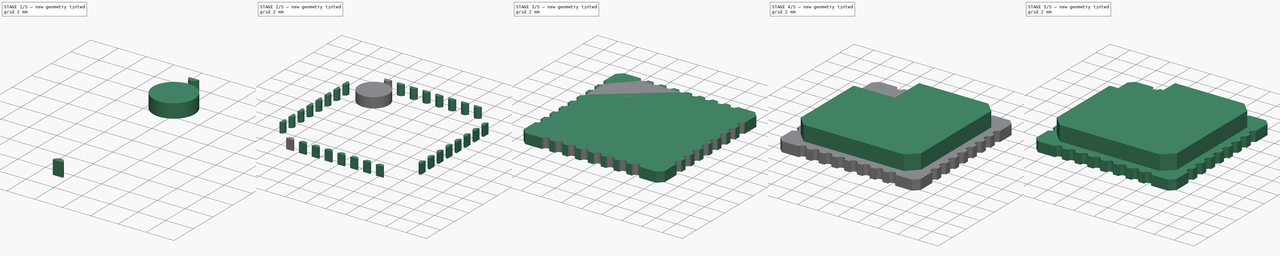
[diagram: build sequence overview — one tinted view per stage of 5, left to right]
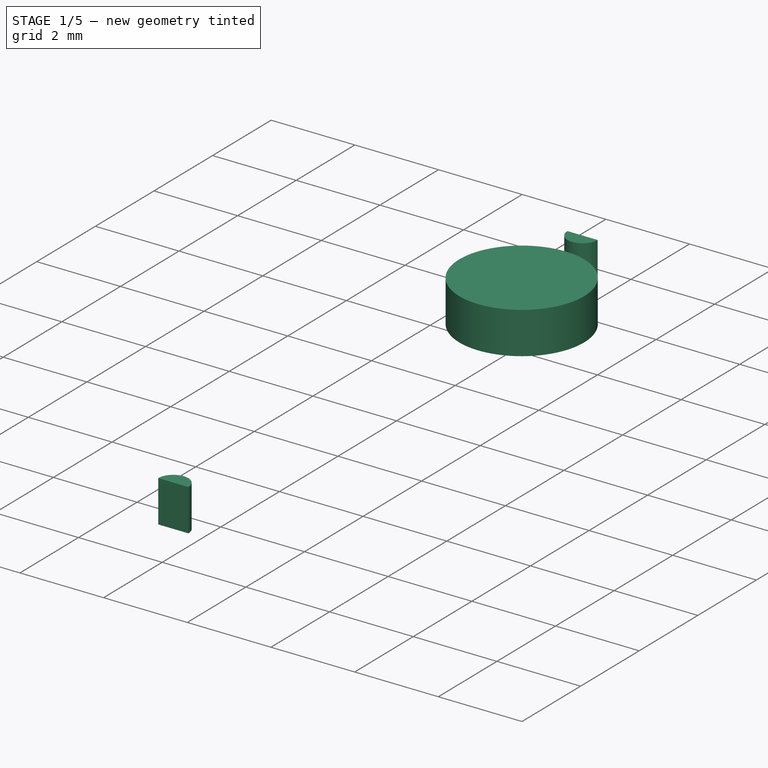
[diagram: stage 1 of 5 — iso view after this stage's code; geometry added in this stage tinted green]
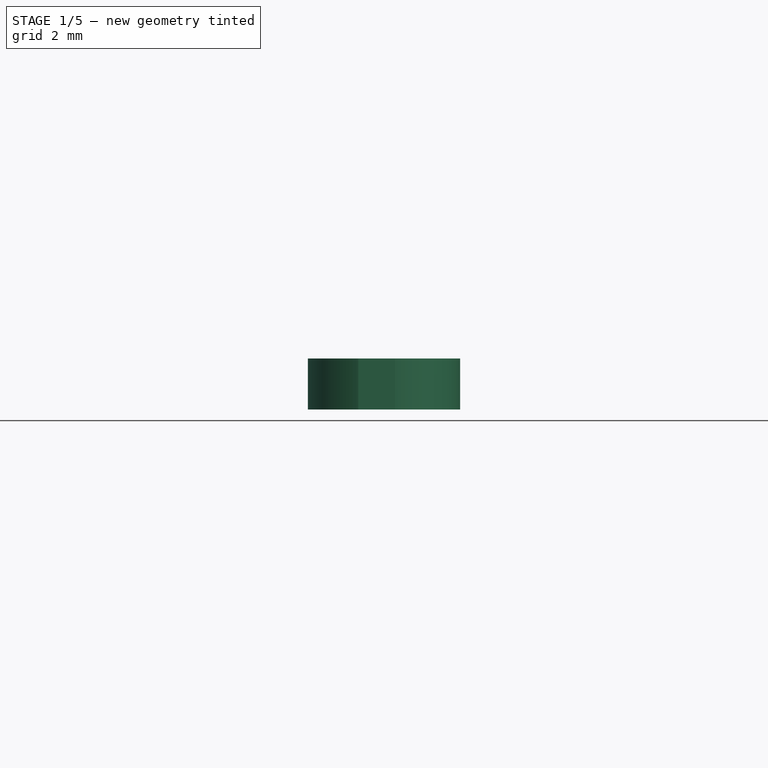
[diagram: stage 1 of 5 — front view after this stage's code; geometry added in this stage tinted green]
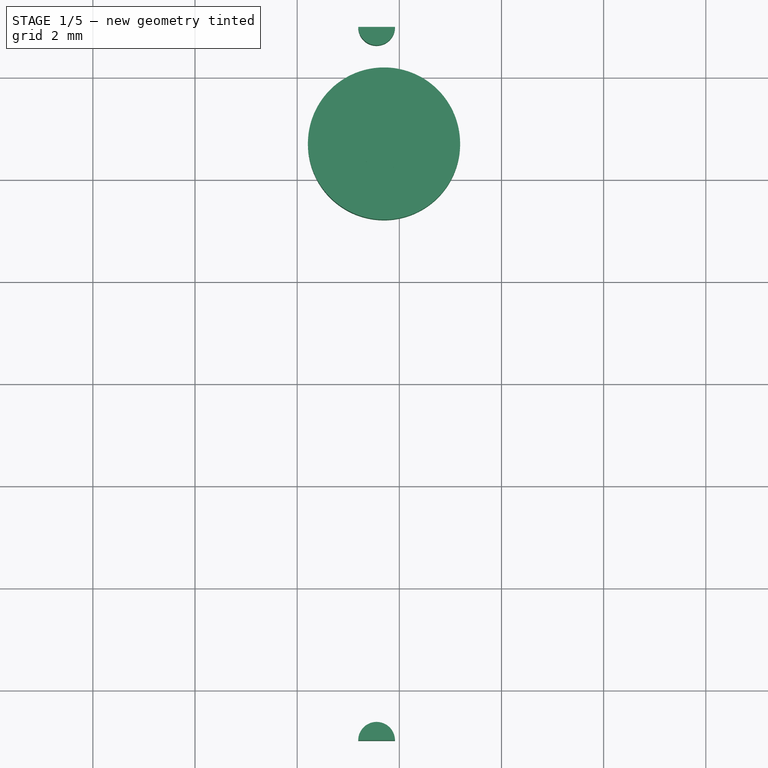
[diagram: stage 1 of 5 — top view after this stage's code; geometry added in this stage tinted green]
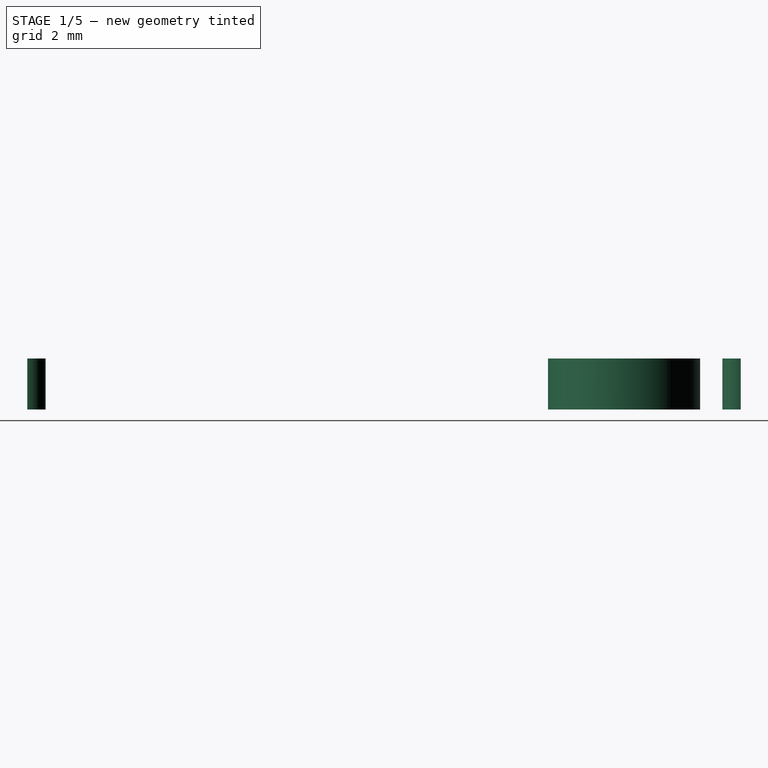
[diagram: stage 1 of 5 — right view after this stage's code; geometry added in this stage tinted green]
FCSTD DOCUMENT  (FreeCAD 0.17R13522 (Git))
Label: MonoWireless_TWE-L-WX
License: CC-BY 3.0
LicenseURL: http://creativecommons.org/licenses/by/3.0/
objects: Sketcher::SketchObject×5, PartDesign::Pad×5, Part::FeaturePython×4, Part::MultiFuse×2, Part::Cut×2, Part::Part2DObjectPython×2, PartDesign::Chamfer×1, PartDesign::Fillet×1, Part::Cylinder×1, Part::Sweep×1, Part::Thickness×1, Part::Feature×1
note: 31 computed .brp shape members not serialized (recipe doc carries the construction recipe); baked Part::Feature solids carry a one-line shape summary decoded from their .brp

FEATURE [Sketcher::SketchObject] Sketch012  label="ContactHoleCS2"
  MapMode = 5
  sketch-geometry (4):
    g0: ArcOfCircle CenterX=-4.445 CenterY=-6.985 CenterZ=0 NormalX=0 NormalY=0 NormalZ=1 AngleXU=0 Radius=0.36 StartAngle=0 EndAngle=3.14159
    g1: LineSegment StartX=-4.805 StartY=-6.985 StartZ=0 EndX=-4.085 EndY=-6.985 EndZ=0
    g2: ArcOfCircle CenterX=-4.445 CenterY=6.985 CenterZ=0 NormalX=0 NormalY=0 NormalZ=1 AngleXU=0 Radius=0.36 StartAngle=3.14159 EndAngle=6.28319
    g3: LineSegment StartX=-4.805 StartY=6.985 StartZ=0 EndX=-4.085 EndY=6.985 EndZ=0
  constraints (14):
    c: DistanceX(g-2,g0) = -4.445
    c: DistanceY(g-1,g0) = -6.985
    c: DistanceY(g0,g0) = 0
    c: DistanceY(g0,g0) = 0
    c: Radius(g0) = 0.36
    c: Coincident(g1,g0)
    c: Coincident(g1,g0)
    c: DistanceX(g-2,g2) = -4.445
    c: DistanceY(g-1,g2) = 6.985
    c: Radius(g2) = 0.36
    c: DistanceY(g2,g2) = 0
    c: DistanceY(g2,g2) = 0
    c: Coincident(g3,g2)
    c: Coincident(g3,g2)
FEATURE [PartDesign::Pad] Pad010  label="SingleContactHole2"
  Length = 1
  Length2 = 100
  Type = 0
FEATURE [Part::Part2DObjectPython] Circle  label="CircleAntennaContact"  # Draft 2D object (typed FeaturePython)
  FirstAngle = 0
  LastAngle = 0
  MakeFace = false
  MapMode = 5
  Placement = pos=(-4.3,4.7,0) rot=(0,0,1;0rad)
  Radius = 0.49
FEATURE [Part::Cylinder] Cylinder  label="AntennaHole"
  Angle = 360
  AttacherType = Attacher::AttachEngine3D
  Height = 1.0002
  Placement = pos=(-4.3,4.7,-0.0001) rot=(0,0,1;0rad)
  Radius = 0.5
FEATURE [Part::Part2DObjectPython] Line  # Draft 2D object (typed FeaturePython)
  ChamferSize = 0
  Closed = false
  End = (-4.335,4.715,1)
  FilletRadius = 0
  Length = 1
  MakeFace = true
  MapMode = 5
  Points = (2) [(-4.335,4.715,0),(-4.335,4.715,1)]
  Start = (-4.335,4.715,0)
  Subdivisions = 0
FEATURE [Part::Sweep] Sweep
  Frenet = false
  Sections = -> [Circle]
  Solid = true
  Spine = -> Line [Edge1]
  Transition = 1
FEATURE [Part::Thickness] Thickness  label="AntennaContact"
  Faces = -> Sweep [Face2,Face3]
  Intersection = false
  Join = 0
  Mode = 0
  SelfIntersection = false
  Value = 1
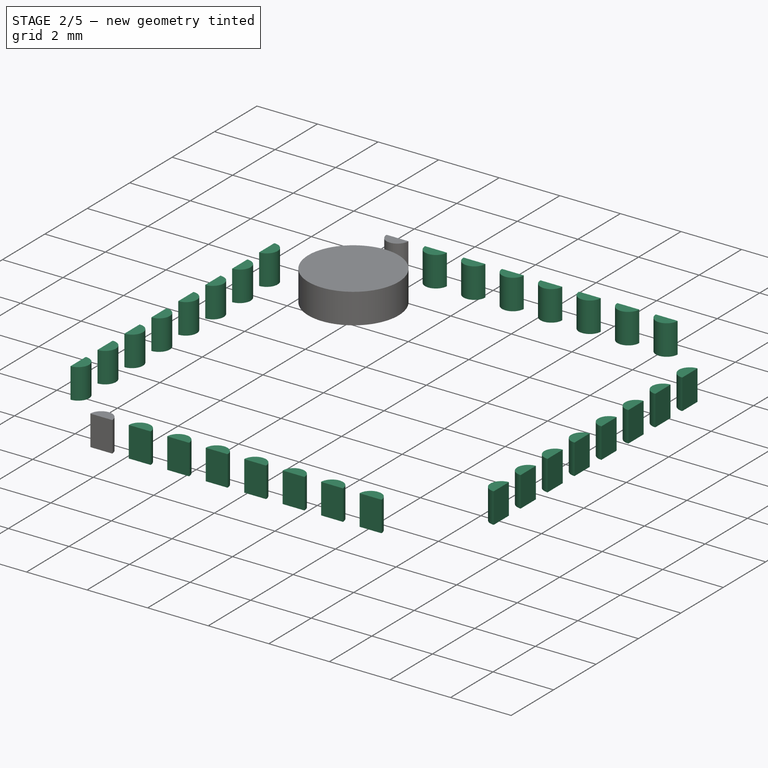
[diagram: stage 2 of 5 — iso view after this stage's code; geometry added in this stage tinted green]
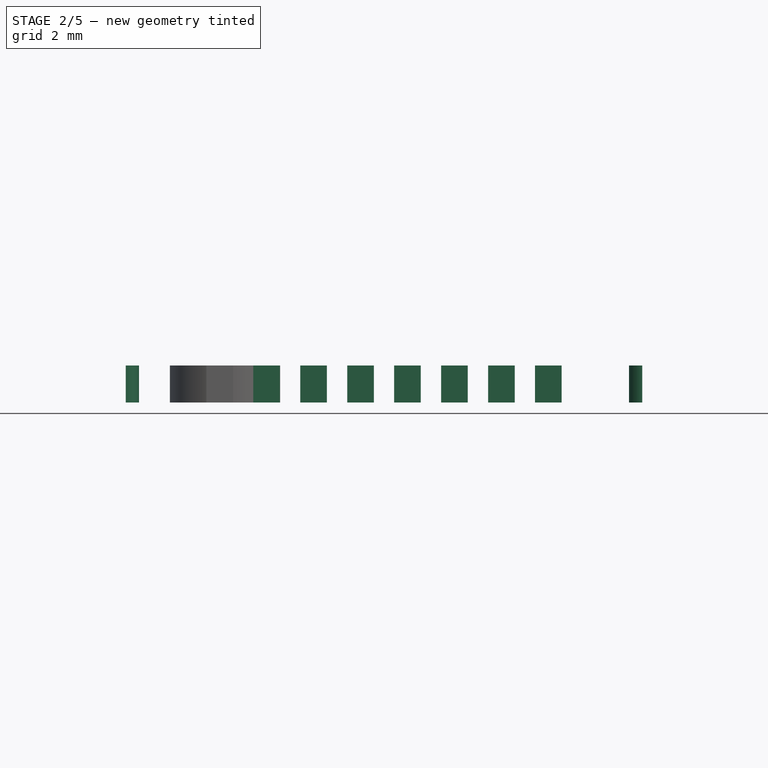
[diagram: stage 2 of 5 — front view after this stage's code; geometry added in this stage tinted green]
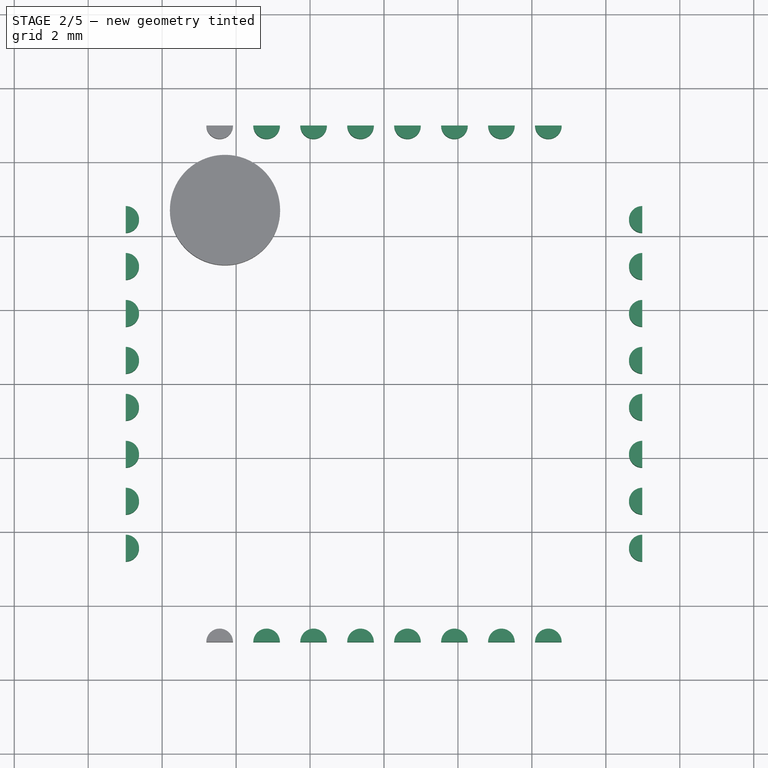
[diagram: stage 2 of 5 — top view after this stage's code; geometry added in this stage tinted green]
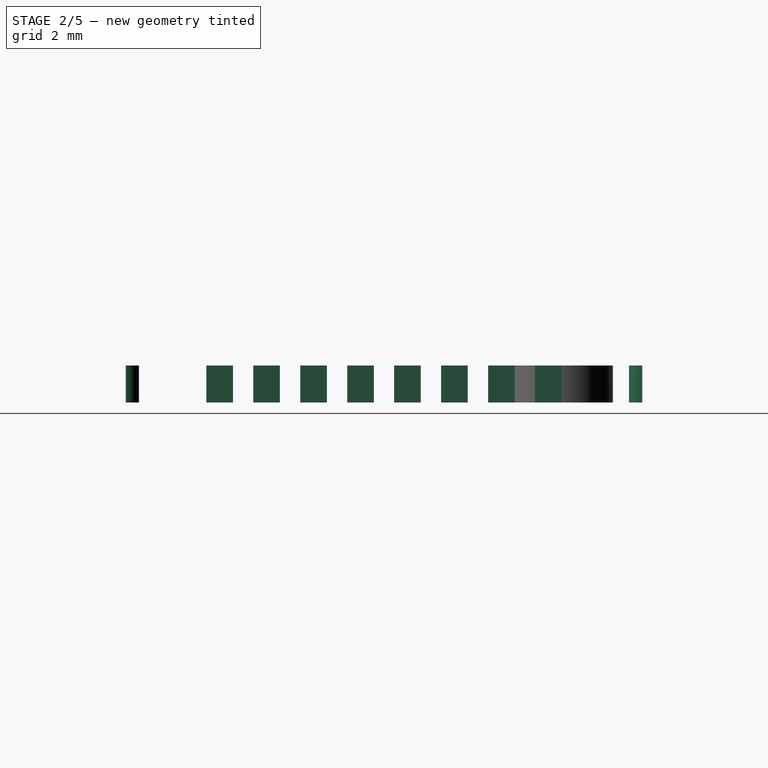
[diagram: stage 2 of 5 — right view after this stage's code; geometry added in this stage tinted green]
FEATURE [Sketcher::SketchObject] Sketch010  label="ContactHoleCS1"
  MapMode = 5
  sketch-geometry (4):
    g0: ArcOfCircle CenterX=-6.985 CenterY=-4.445 CenterZ=0 NormalX=0 NormalY=0 NormalZ=1 AngleXU=0 Radius=0.36 StartAngle=4.71239 EndAngle=7.85398
    g1: LineSegment StartX=-6.985 StartY=-4.085 StartZ=0 EndX=-6.985 EndY=-4.805 EndZ=0
    g2: ArcOfCircle CenterX=6.985 CenterY=-4.445 CenterZ=0 NormalX=0 NormalY=0 NormalZ=1 AngleXU=0 Radius=0.36 StartAngle=1.5708 EndAngle=4.71239
    g3: LineSegment StartX=6.985 StartY=-4.085 StartZ=0 EndX=6.985 EndY=-4.805 EndZ=0
  constraints (14):
    c: DistanceX(g-2,g0) = -6.985
    c: DistanceY(g-1,g0) = -4.445
    c: Radius(g0) = 0.36
    c: DistanceX(g-2,g0) = -6.985
    c: DistanceX(g-2,g0) = -6.985
    c: Coincident(g0,g1)
    c: Coincident(g1,g0)
    c: DistanceX(g-2,g2) = 6.985
    c: DistanceY(g-1,g2) = -4.445
    c: DistanceX(g-2,g2) = 6.985
    c: DistanceX(g-2,g2) = 6.985
    c: Coincident(g3,g2)
    c: Coincident(g3,g2)
    c: Radius(g2) = 0.36
FEATURE [PartDesign::Pad] Pad008  label="SingleContactHole1"
  Length = 1
  Length2 = 100
  Type = 0
FEATURE [Part::FeaturePython] Array  label="ArrayContactHoleSIL1"  # Draft array (typed FeaturePython)
  Angle = 360
  ArrayType = 0
  Axis = (0,0,1)
  Base = -> Pad008
  Center = (0,0,0)
  Fuse = false
  IntervalAxis = (0,0,0)
  IntervalX = (1,0,0)
  IntervalY = (0,1.27,0)
  IntervalZ = (0,0,0)
  NumberPolar = 1
  NumberX = 1
  NumberY = 8
  NumberZ = 1
FEATURE [Part::FeaturePython] Array008  label="ArrayContactHoleSIL2"  # Draft array (typed FeaturePython)
  Angle = 360
  ArrayType = 0
  Axis = (0,0,1)
  Base = -> Pad010
  Center = (0,0,0)
  Fuse = false
  IntervalAxis = (0,0,0)
  IntervalX = (1.27,0,0)
  IntervalY = (0,1,0)
  IntervalZ = (0,0,0)
  NumberPolar = 1
  NumberX = 8
  NumberY = 1
  NumberZ = 1
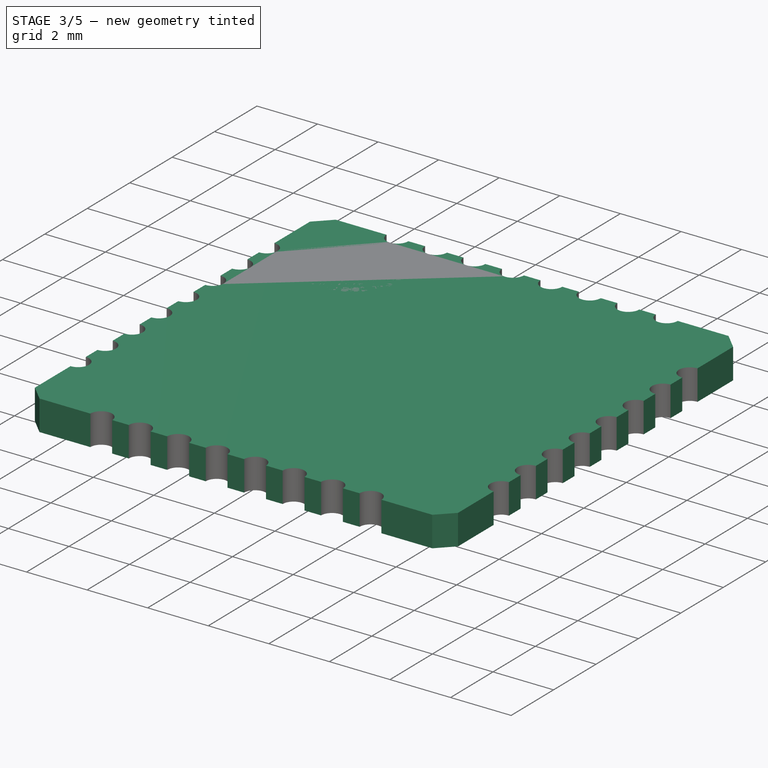
[diagram: stage 3 of 5 — iso view after this stage's code; geometry added in this stage tinted green]
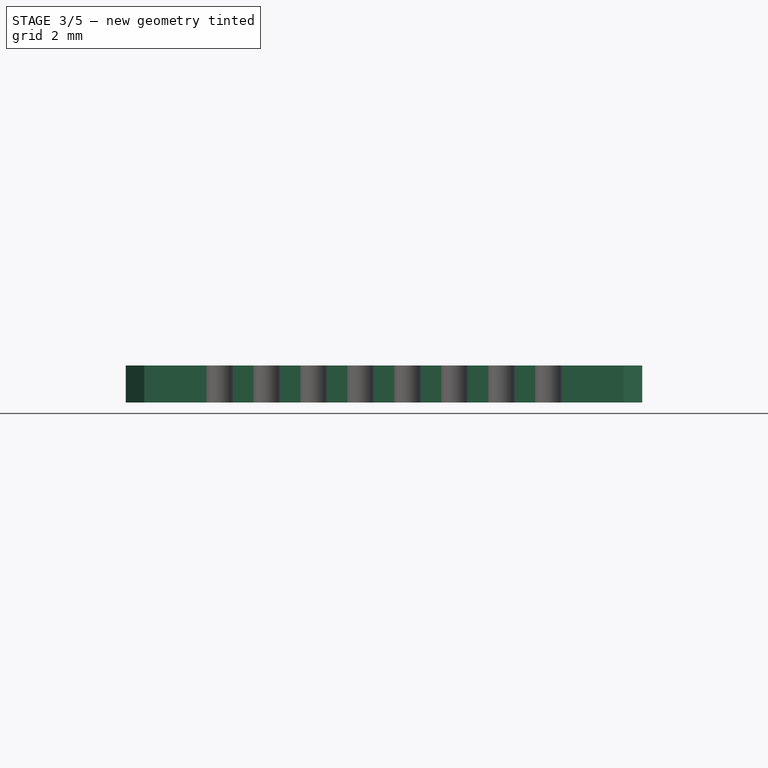
[diagram: stage 3 of 5 — front view after this stage's code; geometry added in this stage tinted green]
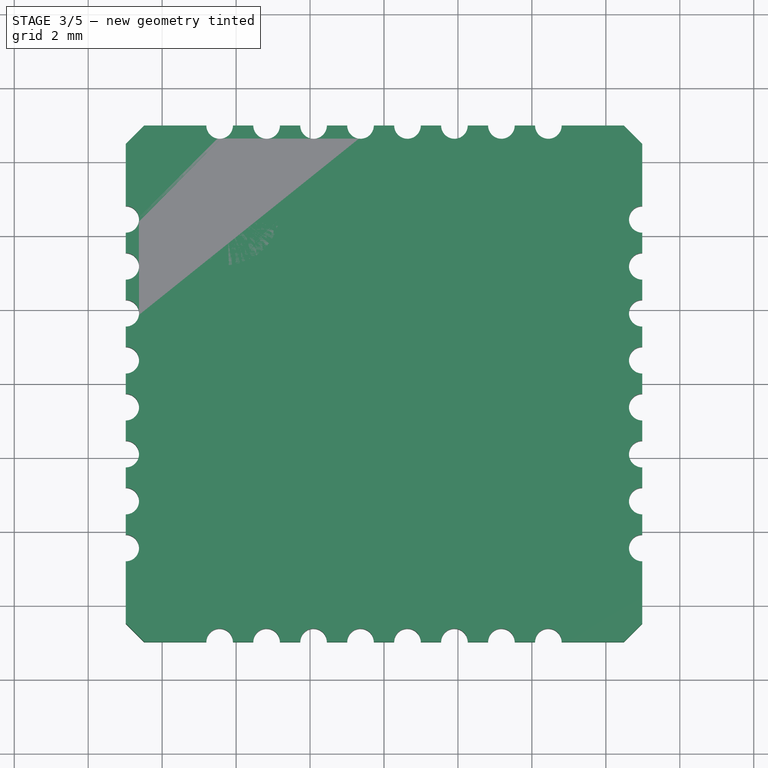
[diagram: stage 3 of 5 — top view after this stage's code; geometry added in this stage tinted green]
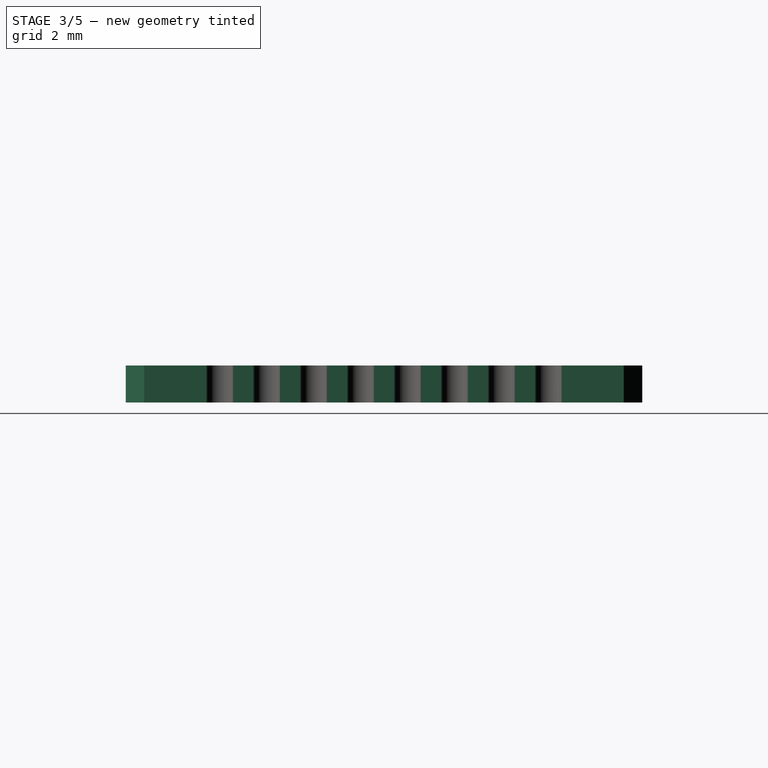
[diagram: stage 3 of 5 — right view after this stage's code; geometry added in this stage tinted green]
FEATURE [Sketcher::SketchObject] Sketch  label="BaseCS"
  MapMode = 5
  Placement = pos=(0,0,0) rot=(0,0,-1;1.5708rad)
  sketch-geometry (4):
    g0: LineSegment StartX=-6.985 StartY=6.985 StartZ=0 EndX=6.985 EndY=6.985 EndZ=0
    g1: LineSegment StartX=6.985 StartY=6.985 StartZ=0 EndX=6.985 EndY=-6.985 EndZ=0
    g2: LineSegment StartX=6.985 StartY=-6.985 StartZ=0 EndX=-6.985 EndY=-6.985 EndZ=0
    g3: LineSegment StartX=-6.985 StartY=-6.985 StartZ=0 EndX=-6.985 EndY=6.985 EndZ=0
  constraints (12):
    c: Coincident(g0,g1)
    c: Coincident(g1,g2)
    c: Coincident(g2,g3)
    c: Coincident(g3,g0)
    c: Horizontal(g0)
    c: Horizontal(g2)
    c: Vertical(g1)
    c: Vertical(g3)
    c: DistanceX(g0,g0) = 13.97
    c: DistanceY(g0,g1) = -13.97
    c: Symmetric(g0,g1,g-1)
    c: Symmetric(g0,g0,g-2)
FEATURE [PartDesign::Pad] Pad  label="BaseSquare"
  Length = 1
  Length2 = 100
  Placement = pos=(0,0,0) rot=(0,0,-1;1.5708rad)
  Type = 0
FEATURE [PartDesign::Chamfer] Chamfer  label="ChamferBase"
  Base = -> Pad [Edge2,Edge1,Edge5,Edge8]
  Placement = pos=(0,0,0) rot=(0,0,-1;1.5708rad)
  Size = 0.5
FEATURE [Part::MultiFuse] Fusion001  label="FusionContactHole"
  Shapes = -> [Array008,Array]
FEATURE [Part::Cut] Cut  label="CutContactHole"
  Base = -> Chamfer
  Tool = -> Fusion001
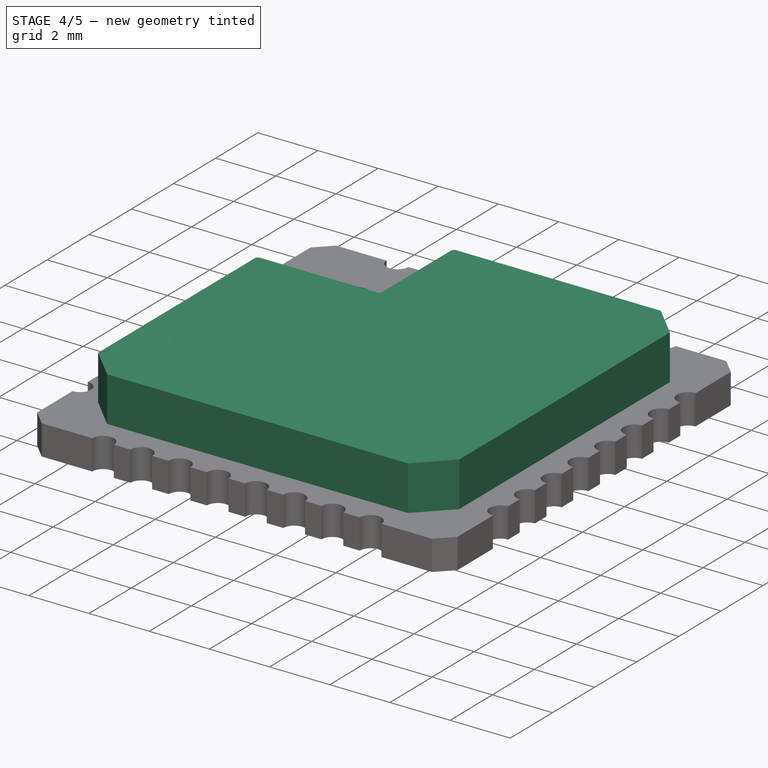
[diagram: stage 4 of 5 — iso view after this stage's code; geometry added in this stage tinted green]
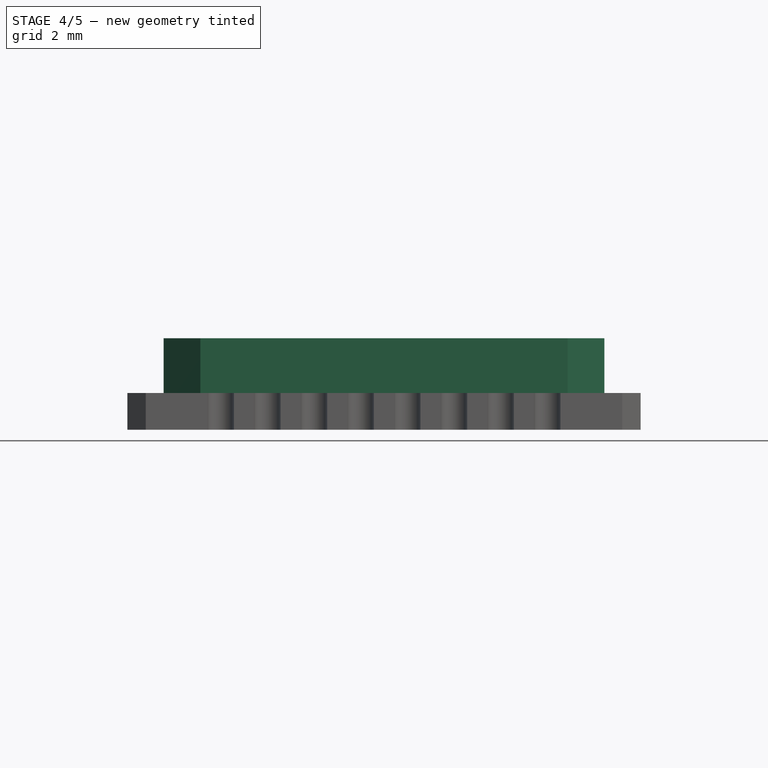
[diagram: stage 4 of 5 — front view after this stage's code; geometry added in this stage tinted green]
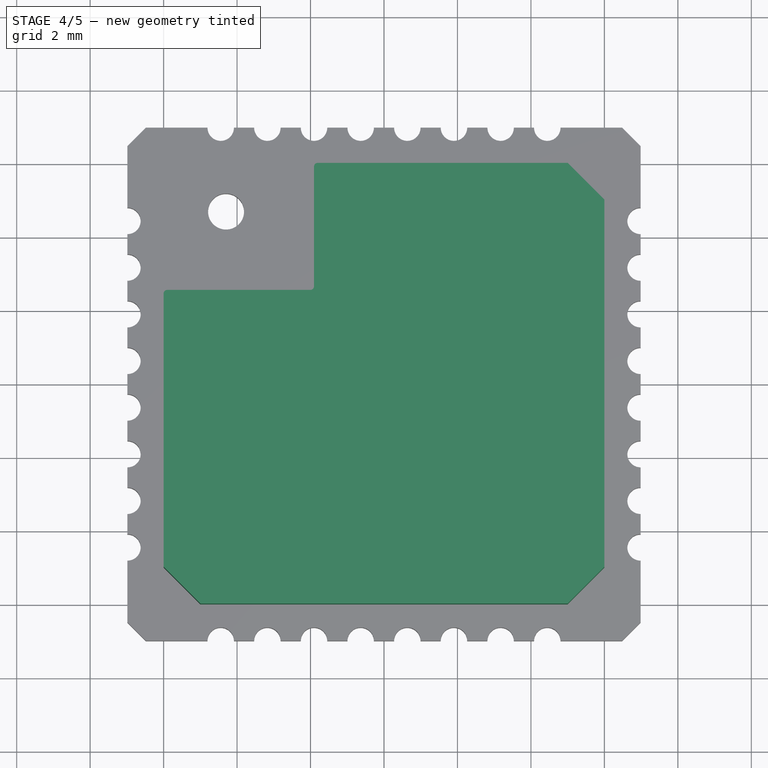
[diagram: stage 4 of 5 — top view after this stage's code; geometry added in this stage tinted green]
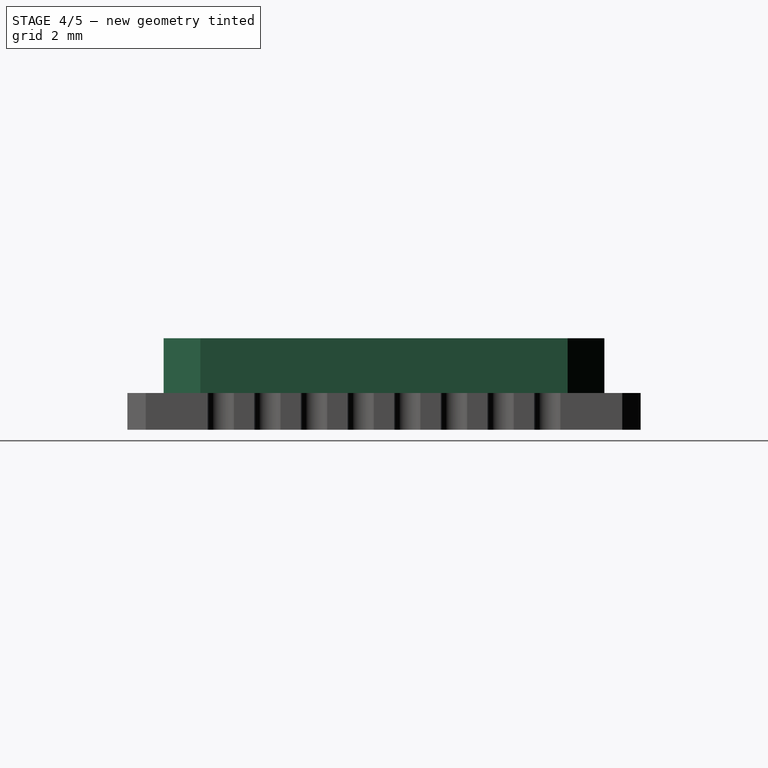
[diagram: stage 4 of 5 — right view after this stage's code; geometry added in this stage tinted green]
FEATURE [Sketcher::SketchObject] Sketch004  label="ShieldCS"
  MapMode = 5
  Placement = pos=(0,0,0.99) rot=(0,0,-1;1.5708rad)
  sketch-geometry (9):
    g0: LineSegment StartX=-6 StartY=-1.905 StartZ=0 EndX=-2.54 EndY=-1.905 EndZ=0
    g1: LineSegment StartX=-2.54 StartY=-1.905 StartZ=0 EndX=-2.54 EndY=-6 EndZ=0
    g2: LineSegment StartX=-2.54 StartY=-6 StartZ=0 EndX=5 EndY=-6 EndZ=0
    g3: LineSegment StartX=5 StartY=6 StartZ=0 EndX=-5 EndY=6 EndZ=0
    g4: LineSegment StartX=-6 StartY=5 StartZ=0 EndX=-5 EndY=6 EndZ=0
    g5: LineSegment StartX=-6 StartY=-1.905 StartZ=0 EndX=-6 EndY=5 EndZ=0
    g6: LineSegment StartX=5 StartY=6 StartZ=0 EndX=6 EndY=5 EndZ=0
    g7: LineSegment StartX=6 StartY=5 StartZ=0 EndX=6 EndY=-5 EndZ=0
    g8: LineSegment StartX=6 StartY=-5 StartZ=0 EndX=5 EndY=-6 EndZ=0
  constraints (29):
    c: Horizontal(g0)
    c: Coincident(g0,g1)
    c: Vertical(g1)
    c: Coincident(g1,g2)
    c: Horizontal(g2)
    c: Horizontal(g3)
    c: Symmetric(g3,g3,g-2)
    c: Symmetric(g2,g3,g-1)
    c: DistanceX(g-2,g1) = -2.54
    c: DistanceY(g-1,g0) = -1.905
    c: DistanceY(g3,g2) = -12
    c: DistanceX(g-2,g0) = -6
    c: Vertical(g5)
    c: DistanceY(g-1,g4) = 5
    c: DistanceX(g-2,g4) = -5
    c: Coincident(g3,g4)
    c: DistanceX(g-2,g6) = 5
    c: Coincident(g6,g3)
    c: DistanceX(g-2,g6) = 6
    c: DistanceY(g-1,g6) = 5
    c: DistanceY(g-1,g7) = -5
    c: DistanceX(g-2,g2) = 5
    c: Coincident(g7,g8)
    c: DistanceX(g-2,g7) = 6
    c: Vertical(g7)
    c: Coincident(g7,g6)
    c: Coincident(g8,g2)
    c: Coincident(g5,g0)
    c: Coincident(g5,g4)
FEATURE [PartDesign::Pad] Pad002  label="TopSheld"
  Length = 1.5
  Length2 = 100
  Placement = pos=(0,0,0.99) rot=(0,0,-1;1.5708rad)
  Type = 0
FEATURE [PartDesign::Fillet] Fillet005  label="FilletShield"
  Base = -> Pad002 [Edge1,Edge5,Edge8]
  Placement = pos=(0,0,0.99) rot=(0,0,-1;1.5708rad)
  Radius = 0.1
FEATURE [Part::Cut] Cut001  label="CutAntennaHole"
  Base = -> Cut
  Tool = -> Cylinder
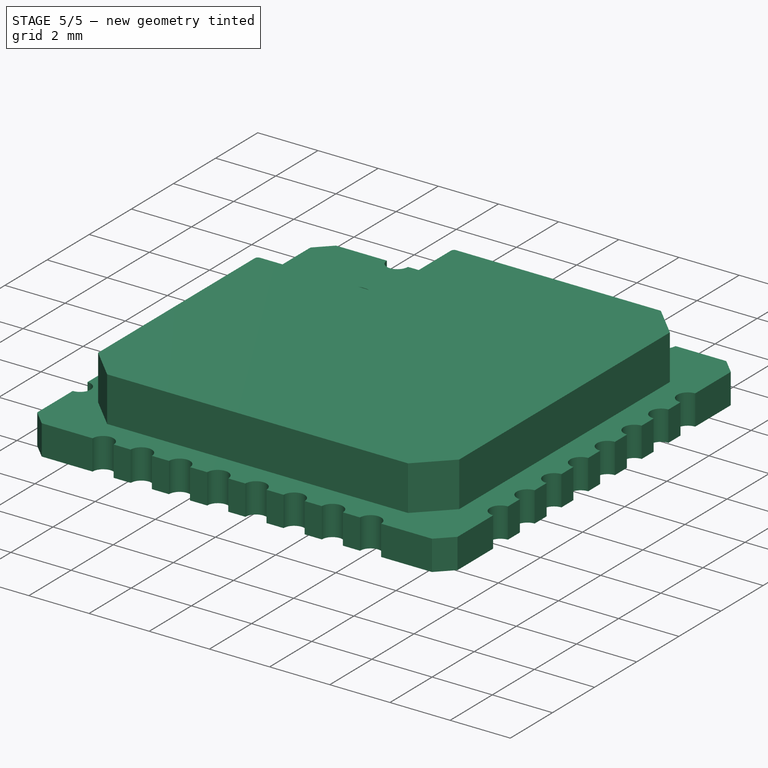
[diagram: stage 5 of 5 — iso view after this stage's code; geometry added in this stage tinted green]
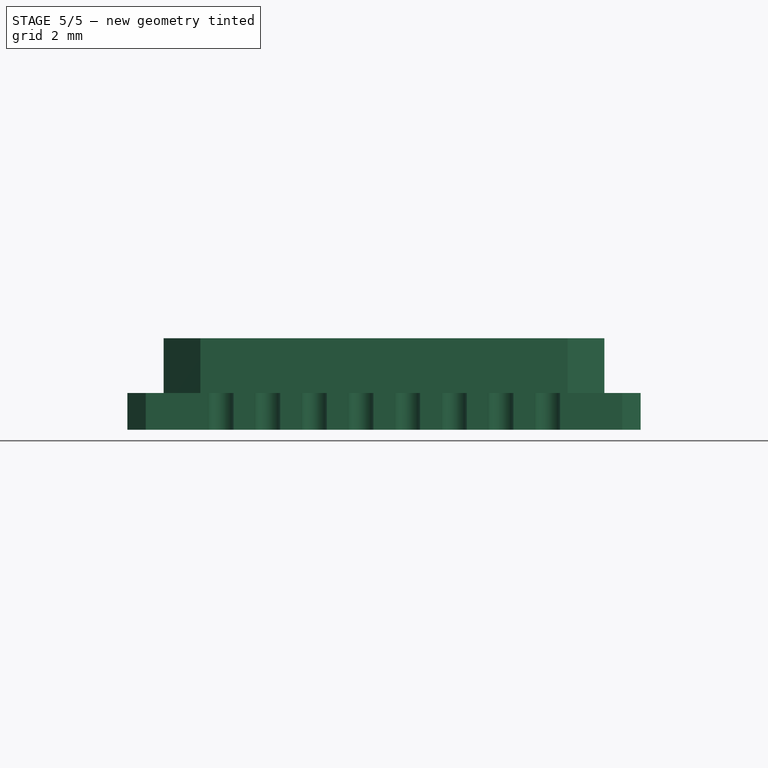
[diagram: stage 5 of 5 — front view after this stage's code; geometry added in this stage tinted green]
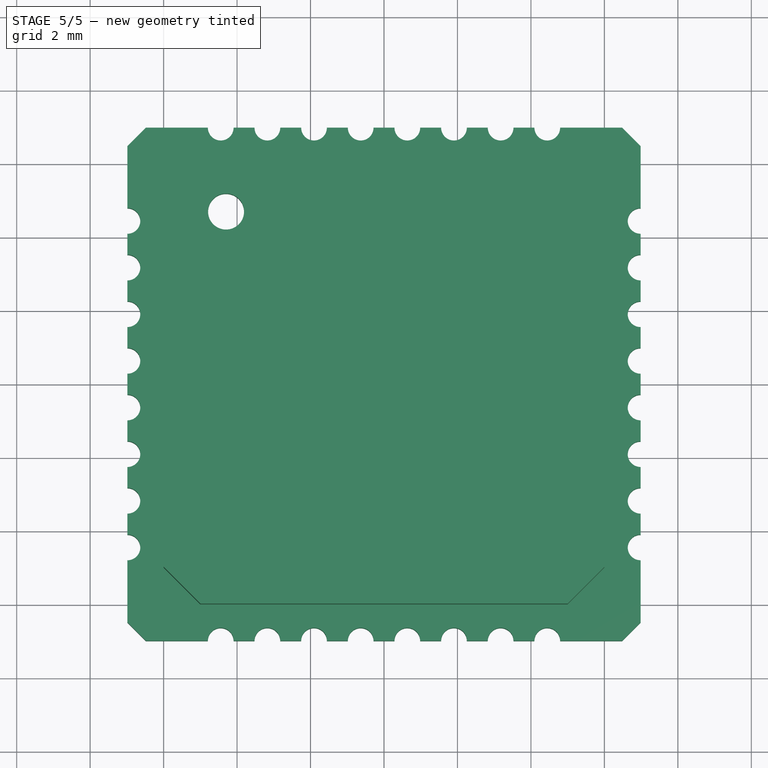
[diagram: stage 5 of 5 — top view after this stage's code; geometry added in this stage tinted green]
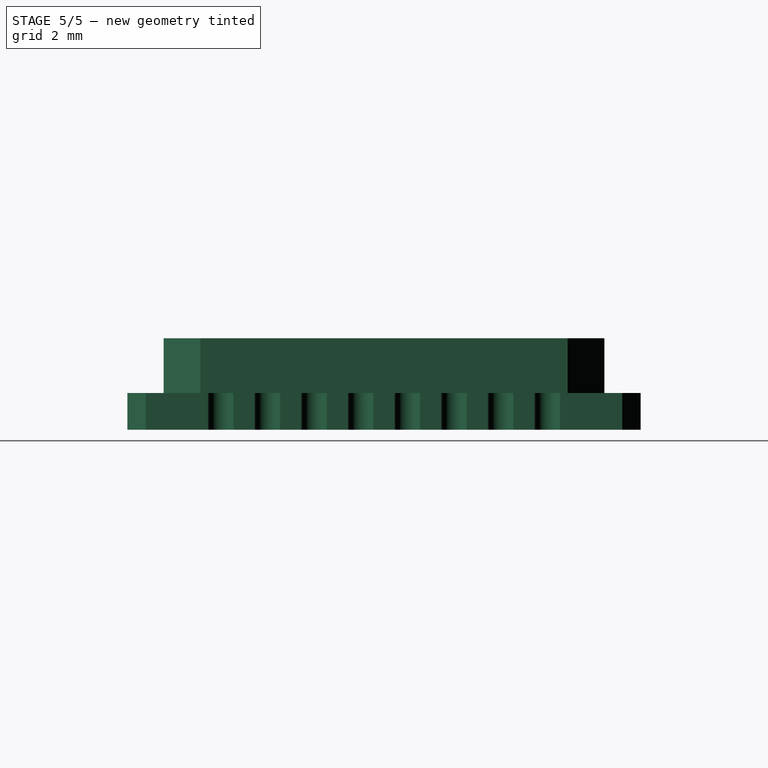
[diagram: stage 5 of 5 — right view after this stage's code; geometry added in this stage tinted green]
FEATURE [Sketcher::SketchObject] Sketch011  label="ContactThCS"
  MapMode = 5
  sketch-geometry (8):
    g0: ArcOfCircle CenterX=-6.985 CenterY=-4.445 CenterZ=0 NormalX=0 NormalY=0 NormalZ=1 AngleXU=0 Radius=0.35 StartAngle=4.71239 EndAngle=7.85398
    g1: ArcOfCircle CenterX=-6.985 CenterY=-4.445 CenterZ=0 NormalX=0 NormalY=0 NormalZ=1 AngleXU=0 Radius=0.36 StartAngle=4.71239 EndAngle=7.85398
    g2: LineSegment StartX=-6.985 StartY=-4.095 StartZ=0 EndX=-6.985 EndY=-4.085 EndZ=0
    g3: LineSegment StartX=-6.985 StartY=-4.795 StartZ=0 EndX=-6.985 EndY=-4.805 EndZ=0
    g4: ArcOfCircle CenterX=6.985 CenterY=-4.445 CenterZ=0 NormalX=0 NormalY=0 NormalZ=1 AngleXU=0 Radius=0.35 StartAngle=1.5708 EndAngle=4.71239
    g5: ArcOfCircle CenterX=6.985 CenterY=-4.445 CenterZ=0 NormalX=0 NormalY=0 NormalZ=1 AngleXU=0 Radius=0.36 StartAngle=1.5708 EndAngle=4.71239
    g6: LineSegment StartX=6.985 StartY=-4.095 StartZ=0 EndX=6.985 EndY=-4.085 EndZ=0
    g7: LineSegment StartX=6.985 StartY=-4.795 StartZ=0 EndX=6.985 EndY=-4.805 EndZ=0
  constraints (26):
    c: DistanceX(g-2,g0) = -6.985
    c: DistanceY(g-1,g0) = -4.445
    c: DistanceX(g-2,g0) = -6.985
    c: DistanceX(g-2,g0) = -6.985
    c: Radius(g0) = 0.35
    c: Coincident(g0,g1)
    c: Vertical(g2)
    c: Coincident(g1,g2)
    c: Coincident(g0,g2)
    c: Distance(g2) = 0.01
    c: Coincident(g3,g0)
    c: Coincident(g3,g1)
    c: Vertical(g3)
    c: DistanceX(g-2,g4) = 6.985
    c: DistanceX(g-2,g4) = 6.985
    c: DistanceX(g-2,g4) = 6.985
    c: DistanceY(g-1,g4) = -4.445
    c: Radius(g4) = 0.35
    c: Coincident(g5,g4)
    c: Coincident(g7,g4)
    c: Vertical(g7)
    c: Coincident(g7,g5)
    c: Distance(g7) = 0.01
    c: Coincident(g6,g5)
    c: Coincident(g6,g4)
    c: Vertical(g6)
FEATURE [PartDesign::Pad] Pad009  label="ContactThSingle"
  Length = 1
  Length2 = 100
  Type = 0
FEATURE [Part::FeaturePython] Array006  label="ArrayContactSIL"  # Draft array (typed FeaturePython)
  Angle = 360
  ArrayType = 0
  Axis = (0,0,1)
  Base = -> Pad009
  Center = (0,0,0)
  Fuse = false
  IntervalAxis = (0,0,0)
  IntervalX = (1,0,0)
  IntervalY = (0,1.27,0)
  IntervalZ = (0,0,0)
  NumberPolar = 1
  NumberX = 1
  NumberY = 8
  NumberZ = 1
FEATURE [Part::FeaturePython] Array007  label="ArrayContacts"  # Draft array (typed FeaturePython)
  Angle = 90
  ArrayType = 1
  Axis = (0,0,1)
  Base = -> Array006
  Center = (0,0,0)
  Fuse = false
  IntervalAxis = (0,0,0)
  IntervalX = (1,0,0)
  IntervalY = (0,1,0)
  IntervalZ = (0,0,0)
  NumberPolar = 2
  NumberX = 1
  NumberY = 1
  NumberZ = 1
FEATURE [Part::MultiFuse] ArrayContacts_mp_cp  label="ArrayContacts_fd"
  Shapes = -> [Array007,Fillet005,Cut001,Thickness]
FEATURE [Part::Feature] Shape001  label="MonoWireless_TWE-L-WX"
  shape: bbox 13.97 x 13.97 x 2.492 mm, 220 faces (baked)
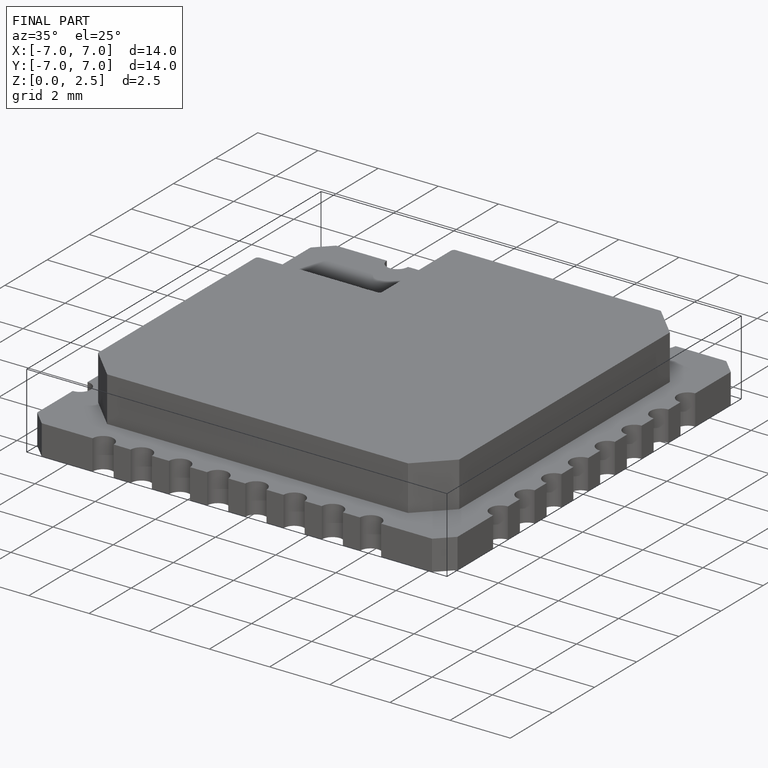
[diagram: finished part — iso view with bounding-box wireframe]
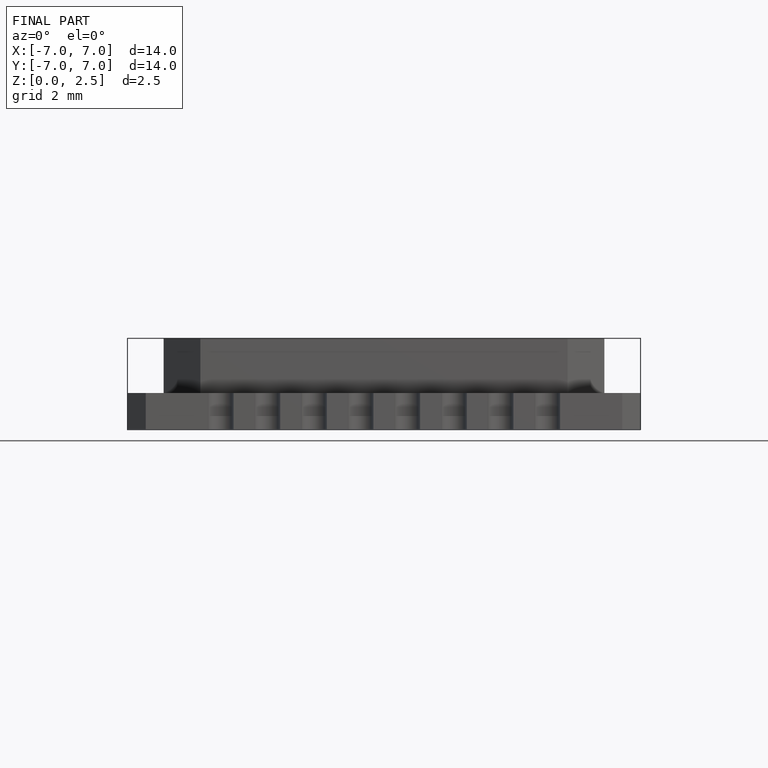
[diagram: finished part — front view with bounding-box wireframe]
